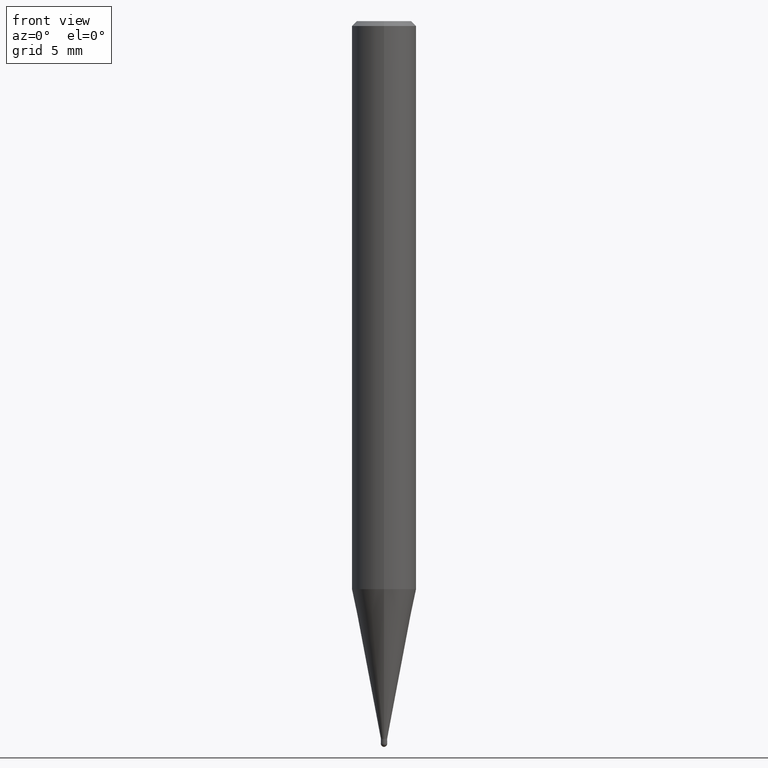
[diagram: clean part render]
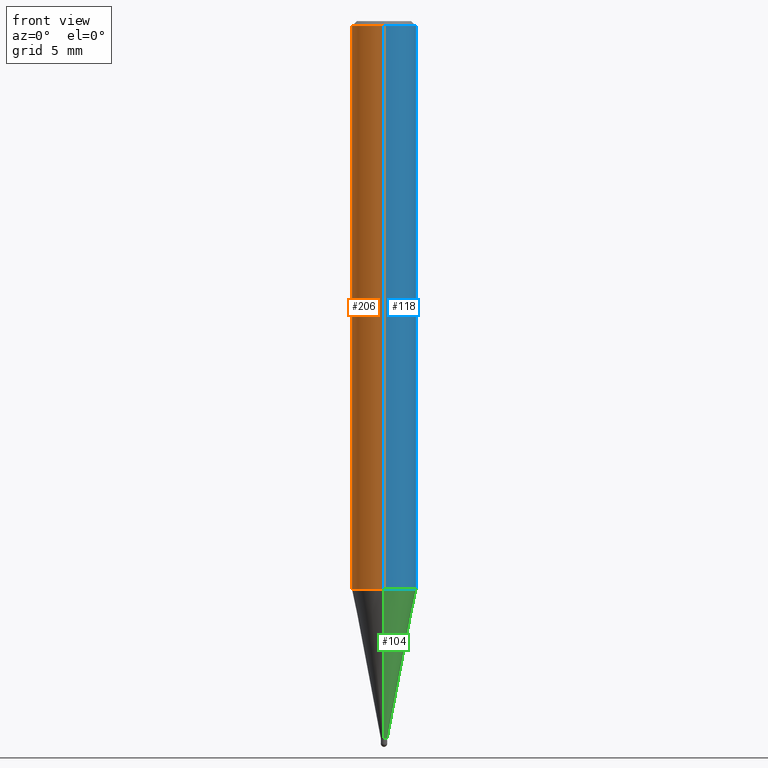
[diagram: same view with three faces highlighted in distinct colors, each labeled with its STEP entity id]
A machine part, front view with three faces highlighted in distinct colors.
Their STEP definitions:

[orange] entity #206 — the highlighted cylindrical surface (edge-blend (fillet) strip) has radius 2 mm, axis along (-0, -0, 1).
#96=EDGE_CURVE('',#156,#166,#237,.T.);
#112=EDGE_CURVE('',#114,#166,#257,.T.);
#114=VERTEX_POINT('',#259);
#122=VERTEX_POINT('',#269);
#156=VERTEX_POINT('',#307);
#166=VERTEX_POINT('',#320);
#182=EDGE_CURVE('',#122,#114,#336,.T.);
#202=EDGE_CURVE('',#156,#122,#356,.T.);
#206=ADVANCED_FACE('',(#361),#362,.T.);
#237=CIRCLE('',#390,2.0);
#257=LINE('',#414,#415);
#259=CARTESIAN_POINT('',(0.0,2.0,-0.299999999999997));
#269=CARTESIAN_POINT('',(2.44921270764475E-016,-2.0,-0.299999999999997));
#307=CARTESIAN_POINT('',(2.44921270764475E-016,-2.0,-35.214));
#320=CARTESIAN_POINT('',(0.0,2.0,-35.214));
#336=CIRCLE('',#511,2.0);
#356=LINE('',#539,#540);
#361=FACE_OUTER_BOUND('',#545,.T.);
#362=CYLINDRICAL_SURFACE('',#546,2.0);
#390=AXIS2_PLACEMENT_3D('',#560,#561,#562);
#414=CARTESIAN_POINT('',(-2.44921270764475E-016,2.0,-17.757));
#415=VECTOR('',#597,1.0);
#511=AXIS2_PLACEMENT_3D('',#696,#697,#698);
#539=CARTESIAN_POINT('',(2.44921270764475E-016,-2.0,-17.757));
#540=VECTOR('',#710,1.0);
#545=EDGE_LOOP('',(#718,#719,#720,#721));
#546=AXIS2_PLACEMENT_3D('',#722,#723,#724);
#560=CARTESIAN_POINT('',(0.0,0.0,-35.214));
#561=DIRECTION('',(0.0,0.0,-1.0));
#562=DIRECTION('',(0.0,1.0,0.0));
#597=DIRECTION('',(0.0,0.0,-1.0));
#696=CARTESIAN_POINT('',(0.0,0.0,-0.299999999999997));
#697=DIRECTION('',(0.0,0.0,-1.0));
#698=DIRECTION('',(0.0,1.0,0.0));
#710=DIRECTION('',(-0.0,-0.0,1.0));
#718=ORIENTED_EDGE('',*,*,#112,.T.);
#719=ORIENTED_EDGE('',*,*,#96,.F.);
#720=ORIENTED_EDGE('',*,*,#202,.T.);
#721=ORIENTED_EDGE('',*,*,#182,.T.);
#722=CARTESIAN_POINT('',(0.0,0.0,-17.757));
#723=DIRECTION('',(-0.0,-0.0,1.0));
#724=DIRECTION('',(0.0,1.0,0.0));

[blue] entity #118 — the highlighted cylindrical surface (edge-blend (fillet) strip) has radius 2 mm, axis along (-0, -0, 1).
#112=EDGE_CURVE('',#114,#166,#257,.T.);
#114=VERTEX_POINT('',#259);
#118=ADVANCED_FACE('',(#264),#265,.T.);
#122=VERTEX_POINT('',#269);
#136=EDGE_CURVE('',#114,#122,#285,.T.);
#156=VERTEX_POINT('',#307);
#166=VERTEX_POINT('',#320);
#176=EDGE_CURVE('',#166,#156,#330,.T.);
#202=EDGE_CURVE('',#156,#122,#356,.T.);
#257=LINE('',#414,#415);
#259=CARTESIAN_POINT('',(0.0,2.0,-0.299999999999997));
#264=FACE_OUTER_BOUND('',#422,.T.);
#265=CYLINDRICAL_SURFACE('',#423,2.0);
#269=CARTESIAN_POINT('',(2.44921270764475E-016,-2.0,-0.299999999999997));
#285=CIRCLE('',#448,2.0);
#307=CARTESIAN_POINT('',(2.44921270764475E-016,-2.0,-35.214));
#320=CARTESIAN_POINT('',(0.0,2.0,-35.214));
#330=CIRCLE('',#501,2.0);
#356=LINE('',#539,#540);
#414=CARTESIAN_POINT('',(-2.44921270764475E-016,2.0,-17.757));
#415=VECTOR('',#597,1.0);
#422=EDGE_LOOP('',(#607,#608,#609,#610));
#423=AXIS2_PLACEMENT_3D('',#611,#612,#613);
#448=AXIS2_PLACEMENT_3D('',#637,#638,#639);
#501=AXIS2_PLACEMENT_3D('',#689,#690,#691);
#539=CARTESIAN_POINT('',(2.44921270764475E-016,-2.0,-17.757));
#540=VECTOR('',#710,1.0);
#597=DIRECTION('',(0.0,0.0,-1.0));
#607=ORIENTED_EDGE('',*,*,#112,.F.);
#608=ORIENTED_EDGE('',*,*,#136,.T.);
#609=ORIENTED_EDGE('',*,*,#202,.F.);
#610=ORIENTED_EDGE('',*,*,#176,.F.);
#611=CARTESIAN_POINT('',(0.0,0.0,-17.757));
#612=DIRECTION('',(-0.0,-0.0,1.0));
#613=DIRECTION('',(0.0,1.0,0.0));
#637=CARTESIAN_POINT('',(0.0,0.0,-0.299999999999997));
#638=DIRECTION('',(0.0,0.0,-1.0));
#639=DIRECTION('',(0.0,1.0,0.0));
#689=CARTESIAN_POINT('',(0.0,0.0,-35.214));
#690=DIRECTION('',(0.0,0.0,-1.0));
#691=DIRECTION('',(0.0,1.0,0.0));
#710=DIRECTION('',(-0.0,-0.0,1.0));

[green] entity #104 — the highlighted conical surface has half-angle 11 deg.
#104=ADVANCED_FACE('',(#247),#248,.T.);
#110=EDGE_CURVE('',#148,#120,#255,.T.);
#120=VERTEX_POINT('',#267);
#148=VERTEX_POINT('',#298);
#180=EDGE_CURVE('',#148,#208,#334,.T.);
#186=VERTEX_POINT('',#340);
#198=EDGE_CURVE('',#186,#120,#352,.T.);
#208=VERTEX_POINT('',#364);
#214=EDGE_CURVE('',#208,#186,#372,.T.);
#247=FACE_OUTER_BOUND('',#402,.T.);
#248=CONICAL_SURFACE('',#403,1.09745,0.191984604054908);
#255=CIRCLE('',#411,1.99995);
#267=CARTESIAN_POINT('',(2.44915147732706E-016,-1.99995,-35.214));
#298=CARTESIAN_POINT('',(0.0,1.99995,-35.214));
#334=LINE('',#507,#508);
#340=CARTESIAN_POINT('',(2.38737008677672E-017,-0.19495,-44.5));
#352=LINE('',#533,#534);
#364=CARTESIAN_POINT('',(0.0,0.19495,-44.5));
#372=CIRCLE('',#557,0.19495);
#402=EDGE_LOOP('',(#581,#582,#583,#584));
#403=AXIS2_PLACEMENT_3D('',#585,#586,#587);
#411=AXIS2_PLACEMENT_3D('',#594,#595,#596);
#507=CARTESIAN_POINT('',(-1.34394424300237E-016,1.09745,-39.857));
#508=VECTOR('',#695,1.0);
#533=CARTESIAN_POINT('',(1.34394424300237E-016,-1.09745,-39.857));
#534=VECTOR('',#709,1.0);
#557=AXIS2_PLACEMENT_3D('',#737,#738,#739);
#581=ORIENTED_EDGE('',*,*,#180,.F.);
#582=ORIENTED_EDGE('',*,*,#110,.T.);
#583=ORIENTED_EDGE('',*,*,#198,.F.);
#584=ORIENTED_EDGE('',*,*,#214,.F.);
#585=CARTESIAN_POINT('',(0.0,0.0,-39.857));
#586=DIRECTION('',(-0.0,-0.0,1.0));
#587=DIRECTION('',(0.0,1.0,0.0));
#594=CARTESIAN_POINT('',(0.0,0.0,-35.214));
#595=DIRECTION('',(0.0,0.0,-1.0));
#596=DIRECTION('',(0.0,1.0,0.0));
#695=DIRECTION('',(2.33663968307108E-017,-0.190807411359389,-0.981627491348082));
#709=DIRECTION('',(2.33663968307108E-017,-0.190807411359389,0.981627491348082));
#737=CARTESIAN_POINT('',(0.0,0.0,-44.5));
#738=DIRECTION('',(0.0,0.0,-1.0));
#739=DIRECTION('',(0.0,1.0,0.0));